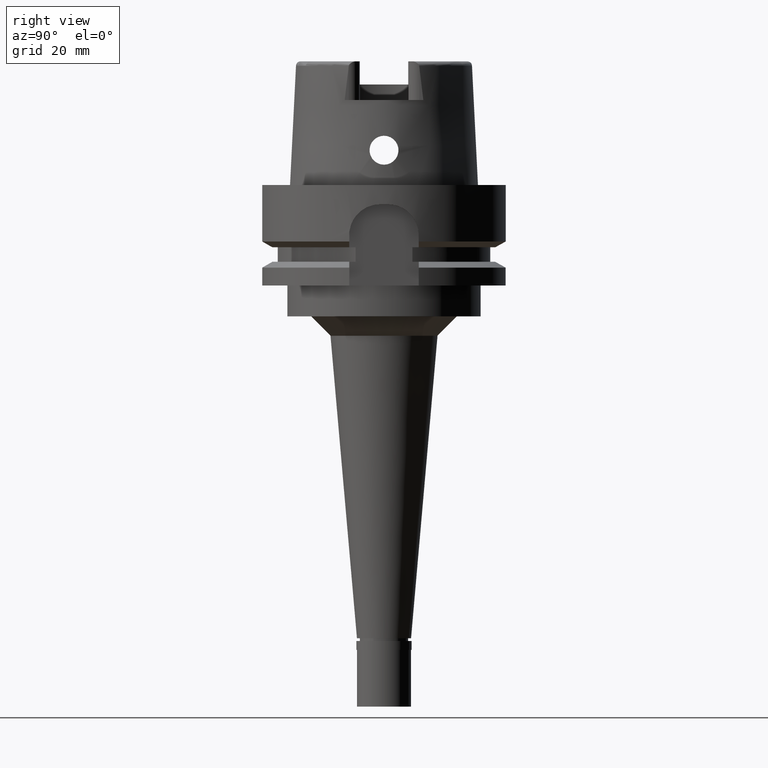
[diagram: clean part render]
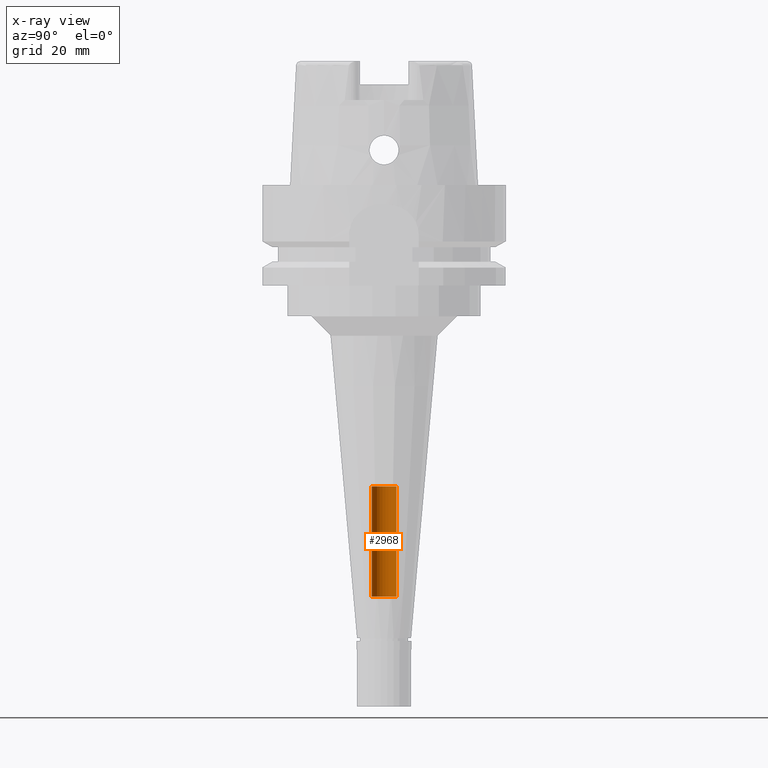
[diagram: x-ray — body ghosted, one internal face saturated and labeled with its STEP entity id]
A machine part, right view, then the same camera in x-ray: the body is ghosted and one INTERNAL B-rep face — a face not visible from any outside direction — is saturated and labeled: STEP entity #2968.
In plain terms, the highlighted cylindrical surface (edge-blend (fillet) strip) has radius 3.2 mm, axis along (0, 0, -1).
Its self-contained STEP definition (entity closure, byte-faithful):
#379 = CARTESIAN_POINT ( 'NONE',  ( 0.0000000000000000000, -3.200000000000000178, -106.5000000000000000 ) ) ;
#560 = VERTEX_POINT ( 'NONE', #3893 ) ;
#670 = CARTESIAN_POINT ( 'NONE',  ( 0.0000000000000000000, 0.0000000000000000000, -78.00000000000000000 ) ) ;
#804 = VERTEX_POINT ( 'NONE', #3053 ) ;
#1070 = DIRECTION ( 'NONE',  ( 0.0000000000000000000, -1.000000000000000000, 0.0000000000000000000 ) ) ;
#1150 = EDGE_CURVE ( 'NONE', #3887, #560, #2209, .T. ) ;
#1308 = EDGE_LOOP ( 'NONE', ( #2129, #2849, #1832, #2504 ) ) ;
#1341 = AXIS2_PLACEMENT_3D ( 'NONE', #3714, #4214, #2946 ) ;
#1428 = CYLINDRICAL_SURFACE ( 'NONE', #3694, 3.200000000000000178 ) ;
#1611 = AXIS2_PLACEMENT_3D ( 'NONE', #670, #2255, #3497 ) ;
#1832 = ORIENTED_EDGE ( 'NONE', *, *, #1150, .T. ) ;
#1850 = CARTESIAN_POINT ( 'NONE',  ( 0.0000000000000000000, 3.200000000000000178, -106.5000000000000000 ) ) ;
#1929 = FACE_OUTER_BOUND ( 'NONE', #1308, .T. ) ;
#2011 = EDGE_CURVE ( 'NONE', #804, #3963, #4551, .T. ) ;
#2129 = ORIENTED_EDGE ( 'NONE', *, *, #2011, .T. ) ;
#2209 = CIRCLE ( 'NONE', #1341, 3.200000000000000178 ) ;
#2255 = DIRECTION ( 'NONE',  ( 0.0000000000000000000, 0.0000000000000000000, 1.000000000000000000 ) ) ;
#2261 = DIRECTION ( 'NONE',  ( 0.0000000000000000000, 0.0000000000000000000, 1.000000000000000000 ) ) ;
#2504 = ORIENTED_EDGE ( 'NONE', *, *, #5292, .T. ) ;
#2660 = VECTOR ( 'NONE', #4956, 1000.000000000000000 ) ;
#2674 = DIRECTION ( 'NONE',  ( 0.0000000000000000000, 0.0000000000000000000, -1.000000000000000000 ) ) ;
#2724 = CARTESIAN_POINT ( 'NONE',  ( 0.0000000000000000000, 0.0000000000000000000, 40.14999999999999858 ) ) ;
#2849 = ORIENTED_EDGE ( 'NONE', *, *, #3230, .F. ) ;
#2946 = DIRECTION ( 'NONE',  ( 0.0000000000000000000, -1.000000000000000000, 0.0000000000000000000 ) ) ;
#2968 = ADVANCED_FACE ( 'NONE', ( #1929 ), #1428, .F. ) ;
#3053 = CARTESIAN_POINT ( 'NONE',  ( 0.0000000000000000000, 3.200000000000000178, -78.00000000000000000 ) ) ;
#3230 = EDGE_CURVE ( 'NONE', #3887, #3963, #4092, .T. ) ;
#3480 = LINE ( 'NONE', #1850, #5262 ) ;
#3497 = DIRECTION ( 'NONE',  ( 0.0000000000000000000, 1.000000000000000000, 0.0000000000000000000 ) ) ;
#3694 = AXIS2_PLACEMENT_3D ( 'NONE', #2724, #2674, #1070 ) ;
#3714 = CARTESIAN_POINT ( 'NONE',  ( 0.0000000000000000000, 0.0000000000000000000, -106.5000000000000000 ) ) ;
#3887 = VERTEX_POINT ( 'NONE', #5286 ) ;
#3893 = CARTESIAN_POINT ( 'NONE',  ( 0.0000000000000000000, 3.200000000000000178, -106.5000000000000000 ) ) ;
#3963 = VERTEX_POINT ( 'NONE', #4389 ) ;
#4092 = LINE ( 'NONE', #379, #2660 ) ;
#4214 = DIRECTION ( 'NONE',  ( 0.0000000000000000000, 0.0000000000000000000, -1.000000000000000000 ) ) ;
#4389 = CARTESIAN_POINT ( 'NONE',  ( 0.0000000000000000000, -3.200000000000000178, -78.00000000000000000 ) ) ;
#4551 = CIRCLE ( 'NONE', #1611, 3.200000000000000178 ) ;
#4956 = DIRECTION ( 'NONE',  ( 0.0000000000000000000, 0.0000000000000000000, 1.000000000000000000 ) ) ;
#5262 = VECTOR ( 'NONE', #2261, 1000.000000000000000 ) ;
#5286 = CARTESIAN_POINT ( 'NONE',  ( 0.0000000000000000000, -3.200000000000000178, -106.5000000000000000 ) ) ;
#5292 = EDGE_CURVE ( 'NONE', #560, #804, #3480, .T. ) ;